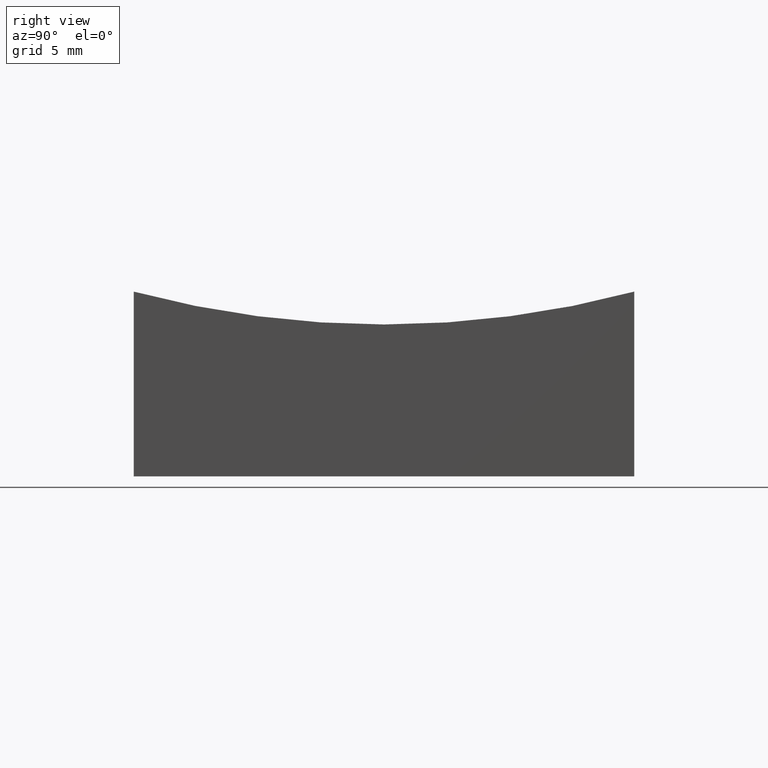
[diagram: clean part render]
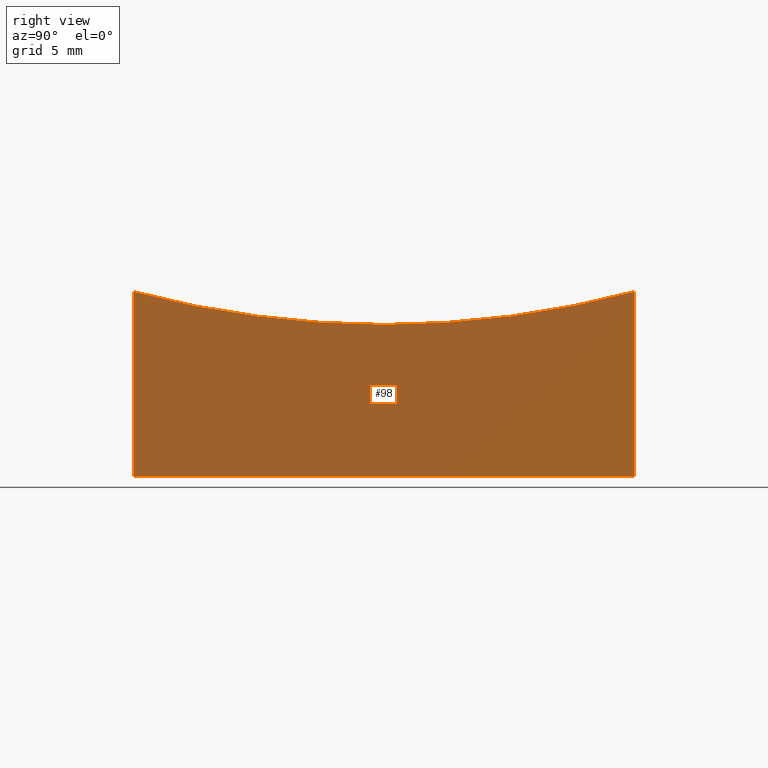
[diagram: same view with one face highlighted and labeled with its STEP entity id]
A machine part, right view. The second image highlights one B-rep face of the part: STEP entity #98.
In plain terms, the highlighted planar face has unit normal (1, 0, -0).
Its self-contained STEP definition (entity closure, byte-faithful):
#3 = VERTEX_POINT ( 'NONE', #133 ) ;
#11 = CARTESIAN_POINT ( 'NONE',  ( 12.50000000000000355, -12.50000000000000000, 20.00000000000000000 ) ) ;
#13 = CARTESIAN_POINT ( 'NONE',  ( 12.50000000000000000, 12.50000000000000000, 20.00000000000000000 ) ) ;
#24 = VERTEX_POINT ( 'NONE', #239 ) ;
#29 = DIRECTION ( 'NONE',  ( -0.0000000000000000000, -0.0000000000000000000, -1.000000000000000000 ) ) ;
#30 = EDGE_LOOP ( 'NONE', ( #75, #92, #238, #90, #52 ) ) ;
#31 = LINE ( 'NONE', #144, #53 ) ;
#40 = FACE_OUTER_BOUND ( 'NONE', #30, .T. ) ;
#43 = EDGE_CURVE ( 'NONE', #3, #24, #118, .T. ) ;
#46 = CARTESIAN_POINT ( 'NONE',  ( 12.50000000000000000, -9.629649721936179265E-32, 7.587708172407285012 ) ) ;
#49 = AXIS2_PLACEMENT_3D ( 'NONE', #222, #248, #135 ) ;
#52 = ORIENTED_EDGE ( 'NONE', *, *, #127, .F. ) ;
#53 = VECTOR ( 'NONE', #140, 1000.000000000000000 ) ;
#64 = EDGE_CURVE ( 'NONE', #3, #190, #147, .T. ) ;
#67 = CARTESIAN_POINT ( 'NONE',  ( 12.50000000000000000, 12.50000000000000000, 0.0000000000000000000 ) ) ;
#75 = ORIENTED_EDGE ( 'NONE', *, *, #64, .F. ) ;
#80 = PLANE ( 'NONE',  #96 ) ;
#81 = DIRECTION ( 'NONE',  ( -1.387778780781445676E-16, 1.000000000000000000, 0.0000000000000000000 ) ) ;
#83 = CIRCLE ( 'NONE', #86, 48.41229182759271765 ) ;
#86 = AXIS2_PLACEMENT_3D ( 'NONE', #174, #245, #228 ) ;
#90 = ORIENTED_EDGE ( 'NONE', *, *, #197, .F. ) ;
#92 = ORIENTED_EDGE ( 'NONE', *, *, #43, .T. ) ;
#96 = AXIS2_PLACEMENT_3D ( 'NONE', #13, #156, #81 ) ;
#98 = ADVANCED_FACE ( 'NONE', ( #40 ), #80, .T. ) ;
#118 = LINE ( 'NONE', #11, #130 ) ;
#127 = EDGE_CURVE ( 'NONE', #190, #182, #83, .T. ) ;
#130 = VECTOR ( 'NONE', #192, 1000.000000000000000 ) ;
#133 = CARTESIAN_POINT ( 'NONE',  ( 12.50000000000000355, -12.50000000000000000, 9.229282665325730051 ) ) ;
#135 = DIRECTION ( 'NONE',  ( -1.433291761649752447E-16, 1.000000000000000000, 0.0000000000000000000 ) ) ;
#136 = VECTOR ( 'NONE', #29, 1000.000000000000000 ) ;
#140 = DIRECTION ( 'NONE',  ( 1.387778780781445676E-16, -1.000000000000000000, 0.0000000000000000000 ) ) ;
#144 = CARTESIAN_POINT ( 'NONE',  ( 12.50000000000000000, 12.50000000000000000, 0.0000000000000000000 ) ) ;
#147 = CIRCLE ( 'NONE', #49, 48.41229182759271765 ) ;
#156 = DIRECTION ( 'NONE',  ( 1.000000000000000000, 1.387778780781445676E-16, -0.0000000000000000000 ) ) ;
#163 = CARTESIAN_POINT ( 'NONE',  ( 12.50000000000000000, 12.50000000000000000, 9.229282665325730051 ) ) ;
#174 = CARTESIAN_POINT ( 'NONE',  ( 12.50000000000000178, 1.734723475976806503E-15, 56.00000000000000000 ) ) ;
#180 = EDGE_CURVE ( 'NONE', #237, #24, #31, .T. ) ;
#182 = VERTEX_POINT ( 'NONE', #163 ) ;
#190 = VERTEX_POINT ( 'NONE', #46 ) ;
#192 = DIRECTION ( 'NONE',  ( -0.0000000000000000000, -0.0000000000000000000, -1.000000000000000000 ) ) ;
#197 = EDGE_CURVE ( 'NONE', #182, #237, #251, .T. ) ;
#222 = CARTESIAN_POINT ( 'NONE',  ( 12.50000000000000178, 1.734723475976806503E-15, 56.00000000000000000 ) ) ;
#228 = DIRECTION ( 'NONE',  ( -1.433291761649752447E-16, 1.000000000000000000, 0.0000000000000000000 ) ) ;
#234 = CARTESIAN_POINT ( 'NONE',  ( 12.50000000000000000, 12.50000000000000000, 20.00000000000000000 ) ) ;
#237 = VERTEX_POINT ( 'NONE', #67 ) ;
#238 = ORIENTED_EDGE ( 'NONE', *, *, #180, .F. ) ;
#239 = CARTESIAN_POINT ( 'NONE',  ( 12.50000000000000355, -12.50000000000000000, 0.0000000000000000000 ) ) ;
#245 = DIRECTION ( 'NONE',  ( 1.000000000000000000, 1.387778780781445676E-16, -0.0000000000000000000 ) ) ;
#248 = DIRECTION ( 'NONE',  ( 1.000000000000000000, 1.387778780781445676E-16, -0.0000000000000000000 ) ) ;
#251 = LINE ( 'NONE', #234, #136 ) ;